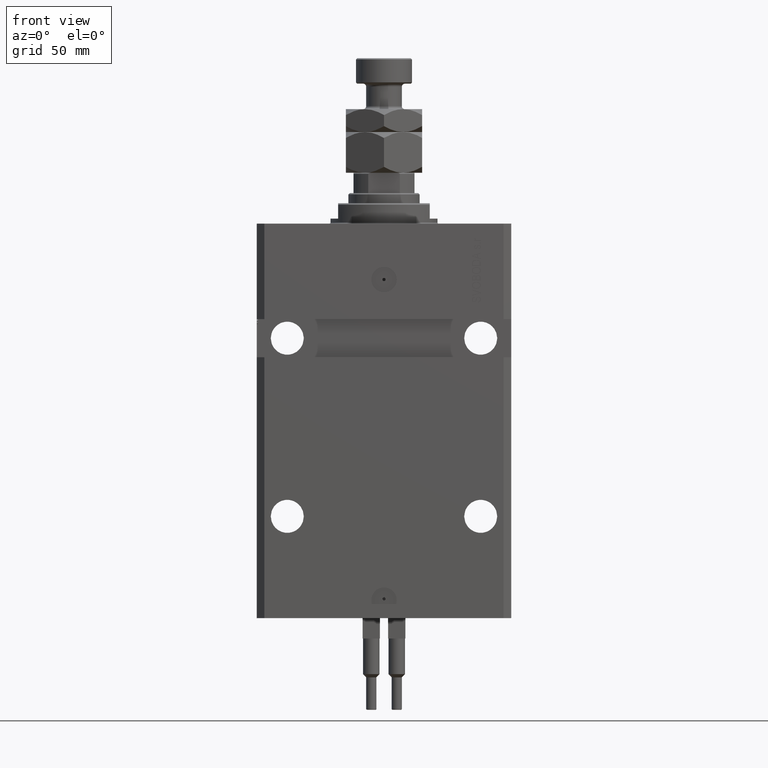
[diagram: clean part render]
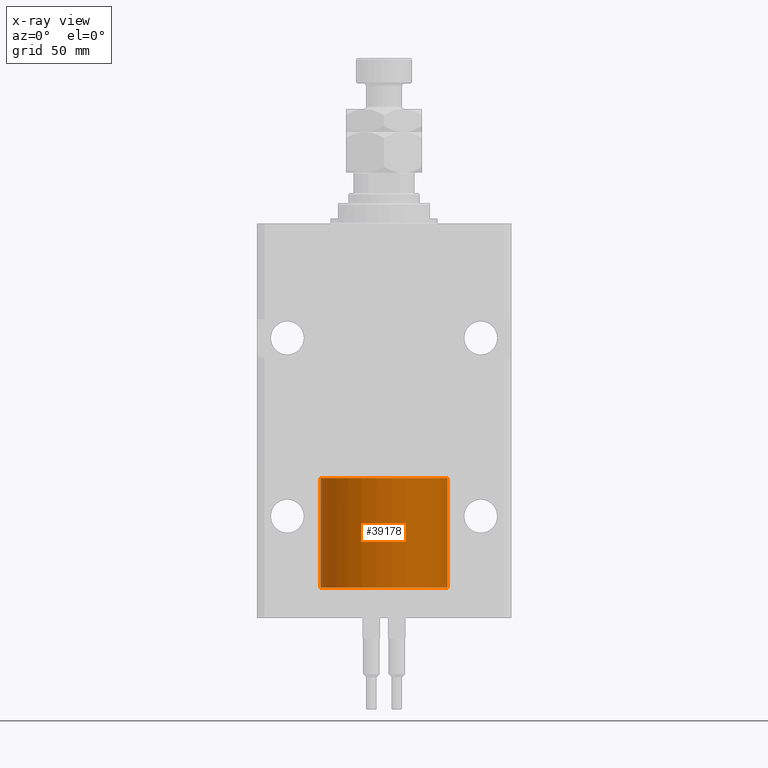
[diagram: x-ray — body ghosted, one internal face saturated and labeled with its STEP entity id]
A machine part, front view, then the same camera in x-ray: the body is ghosted and one INTERNAL B-rep face — a face not visible from any outside direction — is saturated and labeled: STEP entity #39178.
In plain terms, the highlighted cylindrical surface (partial cylindrical patch) has radius 25 mm, axis along (-0, -0, -1).
Its self-contained STEP definition (entity closure, byte-faithful):
#742 = ORIENTED_EDGE ( 'NONE', *, *, #6850, .F. ) ;
#6850 = EDGE_CURVE ( 'NONE', #36309, #16022, #29544, .T. ) ;
#6989 = VERTEX_POINT ( 'NONE', #43985 ) ;
#7208 = EDGE_CURVE ( 'NONE', #16022, #6989, #21337, .T. ) ;
#8199 = ORIENTED_EDGE ( 'NONE', *, *, #7208, .F. ) ;
#9787 = CARTESIAN_POINT ( 'NONE',  ( -25.00000000000000000, 0.000000000000000000, 0.000000000000000000 ) ) ;
#14571 = DIRECTION ( 'NONE',  ( -1.000000000000000000, 0.000000000000000000, 0.000000000000000000 ) ) ;
#15167 = CARTESIAN_POINT ( 'NONE',  ( 0.000000000000000000, 0.000000000000000000, 0.000000000000000000 ) ) ;
#16022 = VERTEX_POINT ( 'NONE', #36286 ) ;
#16963 = ORIENTED_EDGE ( 'NONE', *, *, #18427, .T. ) ;
#18427 = EDGE_CURVE ( 'NONE', #36309, #38843, #32748, .T. ) ;
#18918 = DIRECTION ( 'NONE',  ( -0.000000000000000000, -0.000000000000000000, -1.000000000000000000 ) ) ;
#21200 = CARTESIAN_POINT ( 'NONE',  ( -25.00000000000000000, 0.000000000000000000, 43.10000000000000142 ) ) ;
#21337 = LINE ( 'NONE', #44434, #42171 ) ;
#21469 = AXIS2_PLACEMENT_3D ( 'NONE', #31909, #18918, #14571 ) ;
#21528 = CARTESIAN_POINT ( 'NONE',  ( 0.000000000000000000, 0.000000000000000000, 43.10000000000000142 ) ) ;
#22028 = DIRECTION ( 'NONE',  ( 0.000000000000000000, 0.000000000000000000, 1.000000000000000000 ) ) ;
#24015 = ORIENTED_EDGE ( 'NONE', *, *, #44015, .T. ) ;
#25197 = DIRECTION ( 'NONE',  ( -0.000000000000000000, -0.000000000000000000, -1.000000000000000000 ) ) ;
#28068 = FACE_OUTER_BOUND ( 'NONE', #33512, .T. ) ;
#28903 = DIRECTION ( 'NONE',  ( -0.000000000000000000, -0.000000000000000000, -1.000000000000000000 ) ) ;
#29507 = AXIS2_PLACEMENT_3D ( 'NONE', #21528, #22028, #36932 ) ;
#29544 = CIRCLE ( 'NONE', #29507, 25.00000000000000000 ) ;
#31909 = CARTESIAN_POINT ( 'NONE',  ( 0.000000000000000000, 0.000000000000000000, 43.10000000000000142 ) ) ;
#32452 = CARTESIAN_POINT ( 'NONE',  ( -25.00000000000000000, 0.000000000000000000, 43.10000000000000142 ) ) ;
#32748 = LINE ( 'NONE', #21200, #45742 ) ;
#33512 = EDGE_LOOP ( 'NONE', ( #8199, #742, #16963, #24015 ) ) ;
#36286 = CARTESIAN_POINT ( 'NONE',  ( 25.00000000000000000, 3.061616997868383043E-15, 43.10000000000000142 ) ) ;
#36309 = VERTEX_POINT ( 'NONE', #32452 ) ;
#36932 = DIRECTION ( 'NONE',  ( 1.000000000000000000, 0.000000000000000000, 0.000000000000000000 ) ) ;
#37908 = CYLINDRICAL_SURFACE ( 'NONE', #21469, 25.00000000000000000 ) ;
#38005 = DIRECTION ( 'NONE',  ( 0.000000000000000000, 0.000000000000000000, 1.000000000000000000 ) ) ;
#38843 = VERTEX_POINT ( 'NONE', #9787 ) ;
#39178 = ADVANCED_FACE ( 'NONE', ( #28068 ), #37908, .T. ) ;
#41344 = DIRECTION ( 'NONE',  ( 1.000000000000000000, 0.000000000000000000, 0.000000000000000000 ) ) ;
#42171 = VECTOR ( 'NONE', #25197, 1000.000000000000000 ) ;
#43985 = CARTESIAN_POINT ( 'NONE',  ( 25.00000000000000000, 3.061616997868383043E-15, 0.000000000000000000 ) ) ;
#44015 = EDGE_CURVE ( 'NONE', #38843, #6989, #48673, .T. ) ;
#44434 = CARTESIAN_POINT ( 'NONE',  ( 25.00000000000000000, 3.061616997868383043E-15, 43.10000000000000142 ) ) ;
#45742 = VECTOR ( 'NONE', #28903, 1000.000000000000000 ) ;
#47054 = AXIS2_PLACEMENT_3D ( 'NONE', #15167, #38005, #41344 ) ;
#48673 = CIRCLE ( 'NONE', #47054, 25.00000000000000000 ) ;